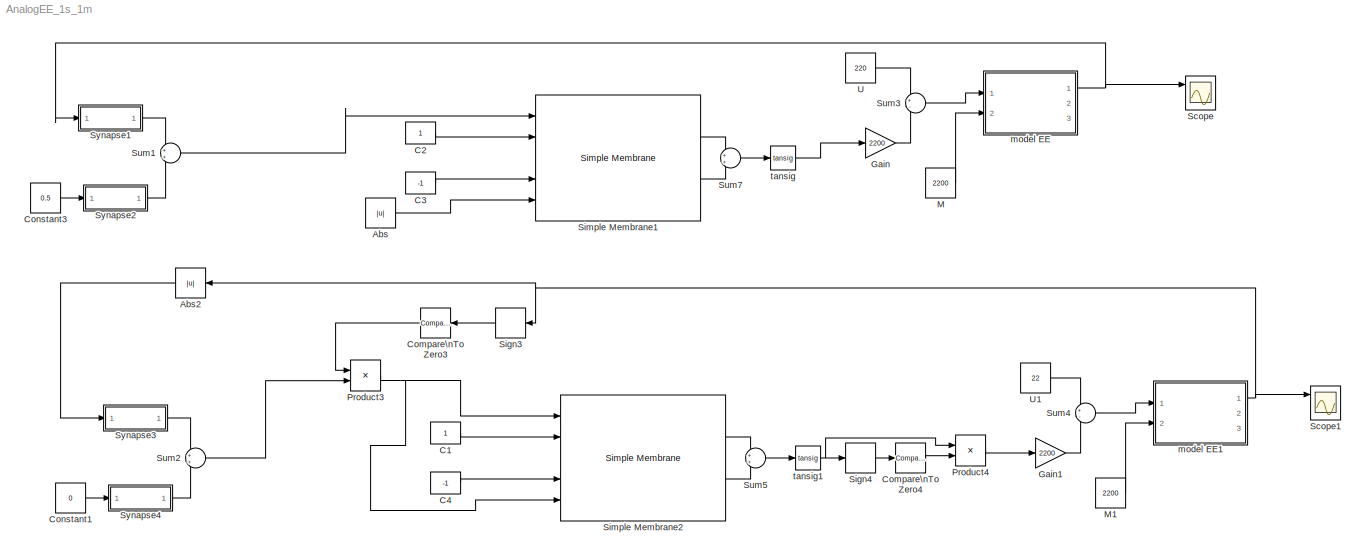
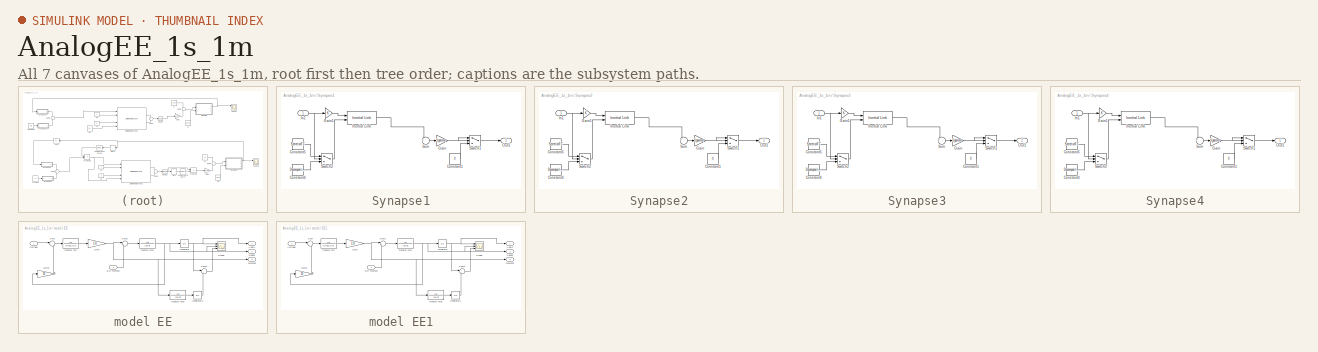
[diagram: thumbnail index - all 7 canvases of the model, root first then tree order]
MODEL AnalogEE_1s_1m
KIND model
BLOCK [Abs] Abs
  OutDataType = sfix(16)
  OutScaling = 2^0
  SID = 1
  SaturateOnIntegerOverflow = off
BLOCK [Abs] Abs2
  OutDataType = sfix(16)
  OutScaling = 2^0
  SID = 2
  SaturateOnIntegerOverflow = off
BLOCK [Constant] C1
  OutDataType = sfix(16)
  OutScaling = 2^0
  SID = 3
BLOCK [Constant] C2
  OutDataType = sfix(16)
  OutScaling = 2^0
  SID = 4
BLOCK [Constant] C3
  OutDataType = sfix(16)
  OutScaling = 2^0
  SID = 5
  Value = -1
BLOCK [Constant] C4
  OutDataType = sfix(16)
  OutScaling = 2^0
  SID = 6
  Value = -1
BLOCK [Reference] Compare\nTo Zero3  REF=simulink/Logic and Bit\nOperations/Compare\nTo Zero
  FunctionWithSeparateData = off
  LogicOutDataTypeMode = uint8
  Ports = [1, 1]
  RTWMemSecDataConstants = Inherit from model
  RTWMemSecDataInternal = Inherit from model
  RTWMemSecDataParameters = Inherit from model
  RTWMemSecFuncExecute = Inherit from model
  RTWMemSecFuncInitTerm = Inherit from model
  SID = 8
  ShowPortLabels = FromPortIcon
  SourceBlock = simulink/Logic and Bit\nOperations/Compare\nTo Zero
  SourceType = Compare To Zero
  SystemSampleTime = -1
  ZeroCross = off
  relop = >=
BLOCK [Reference] Compare\nTo Zero4  REF=simulink/Logic and Bit\nOperations/Compare\nTo Zero
  FunctionWithSeparateData = off
  LogicOutDataTypeMode = uint8
  Ports = [1, 1]
  RTWMemSecDataConstants = Inherit from model
  RTWMemSecDataInternal = Inherit from model
  RTWMemSecDataParameters = Inherit from model
  RTWMemSecFuncExecute = Inherit from model
  RTWMemSecFuncInitTerm = Inherit from model
  SID = 9
  ShowPortLabels = FromPortIcon
  SourceBlock = simulink/Logic and Bit\nOperations/Compare\nTo Zero
  SourceType = Compare To Zero
  SystemSampleTime = -1
  ZeroCross = off
  relop = >=
BLOCK [Constant] Constant1
  OutDataType = sfix(16)
  OutScaling = 2^0
  SID = 10
  Value = 0
BLOCK [Constant] Constant3
  OutDataType = sfix(16)
  OutScaling = 2^0
  SID = 11
  Value = 0.5
BLOCK [Gain] Gain
  Gain = 2200
  OutDataType = sfix(16)
  OutScaling = 2^0
  ParameterDataType = sfix(16)
  ParameterScaling = 2^0
  SID = 12
BLOCK [Gain] Gain1
  Gain = 2200
  OutDataType = sfix(16)
  OutScaling = 2^0
  ParameterDataType = sfix(16)
  ParameterScaling = 2^0
  SID = 13
BLOCK [Constant] M
  OutDataType = sfix(16)
  OutScaling = 2^0
  SID = 14
  Value = 2200
BLOCK [Constant] M1
  OutDataType = sfix(16)
  OutScaling = 2^0
  SID = 15
  Value = 2200
BLOCK [Product] Product3
  InputSameDT = off
  OutDataType = sfix(16)
  OutDataTypeMode = Inherit via internal rule
  OutDataTypeStr = Inherit: Inherit via internal rule
  OutScaling = 2^0
  Ports = [2, 1]
  SID = 17
  SaturateOnIntegerOverflow = off
BLOCK [Product] Product4
  InputSameDT = off
  OutDataType = sfix(16)
  OutDataTypeMode = Inherit via internal rule
  OutDataTypeStr = Inherit: Inherit via internal rule
  OutScaling = 2^0
  Ports = [2, 1]
  SID = 18
  SaturateOnIntegerOverflow = off
BLOCK [Scope] Scope
  DataFormat = StructureWithTime
  Floating = off
  NumInputPorts = 3
  Ports = [3]
  SID = 19
  SampleTime = 0
  SaveName = ScopeData1
  TimeRange = 3
  YMax = 180~1~1
  YMin = 100~-1~-1
BLOCK [Scope] Scope1
  DataFormat = StructureWithTime
  Floating = off
  NumInputPorts = 3
  Ports = [3]
  SID = 20
  SampleTime = 0
  SaveName = ScopeData2
  TimeRange = 3
  YMax = -2~1~1
  YMin = -5~-1~-1
  ZoomMode = xonly
BLOCK [Signum] Sign3
  SID = 22
BLOCK [Signum] Sign4
  SID = 23
BLOCK [Reference] Simple Membrane1  REF=NeuroModelerLibrary/Neuron Elements/Simple Membrane
  ACm = 1e-9
  ARFm = 1e8
  ARm = 1e7
  ECm = 1e-9
  ERFm = 1e8
  ERm = 1e7
  FunctionWithSeparateData = off
  Ports = [5, 2]
  RTWMemSecDataConstants = Inherit from model
  RTWMemSecDataInternal = Inherit from model
  RTWMemSecDataParameters = Inherit from model
  RTWMemSecFuncExecute = Inherit from model
  RTWMemSecFuncInitTerm = Inherit from model
  SID = 24
  ShowPortLabels = FromPortIcon
  SourceBlock = NeuroModelerLibrary/Neuron Elements/Simple Membrane
  SystemSampleTime = -1
BLOCK [Reference] Simple Membrane2  REF=NeuroModelerLibrary/Neuron Elements/Simple Membrane
  ACm = 1e-9
  ARFm = 1e8
  ARm = 1e7
  ECm = 1e-9
  ERFm = 1e8
  ERm = 1e7
  FunctionWithSeparateData = off
  Ports = [5, 2]
  RTWMemSecDataConstants = Inherit from model
  RTWMemSecDataInternal = Inherit from model
  RTWMemSecDataParameters = Inherit from model
  RTWMemSecFuncExecute = Inherit from model
  RTWMemSecFuncInitTerm = Inherit from model
  SID = 25
  ShowPortLabels = FromPortIcon
  SourceBlock = NeuroModelerLibrary/Neuron Elements/Simple Membrane
  SystemSampleTime = -1
BLOCK [Sum] Sum1
  IconShape = round
  OutDataType = sfix(16)
  OutScaling = 2^0
  Ports = [2, 1]
  SID = 26
BLOCK [Sum] Sum2
  IconShape = round
  OutDataType = sfix(16)
  OutScaling = 2^0
  Ports = [2, 1]
  SID = 27
BLOCK [Sum] Sum3
  IconShape = round
  Inputs = +-
  OutDataType = sfix(16)
  OutScaling = 2^0
  Ports = [2, 1]
  SID = 28
BLOCK [Sum] Sum4
  IconShape = round
  Inputs = +-
  OutDataType = sfix(16)
  OutScaling = 2^0
  Ports = [2, 1]
  SID = 29
BLOCK [Sum] Sum5
  IconShape = round
  OutDataType = sfix(16)
  OutScaling = 2^0
  Ports = [2, 1]
  SID = 30
BLOCK [Sum] Sum7
  IconShape = round
  OutDataType = sfix(16)
  OutScaling = 2^0
  Ports = [2, 1]
  SID = 31
BLOCK [SubSystem] Synapse1
  AncestorBlock = NeuroModelerLibrary/Neuron Elements/Synapse
  FunctionWithSeparateData = off
  MaskCallbackString = |||
  MaskEnableString = on,on,on,on
  MaskHideContents = off
  MaskIconFrame = on
  MaskIconOpaque = on
  MaskIconRotate = none
  MaskIconUnits = autoscale
  MaskPortRotate = default
  MaskPromptString = Mediator Secretion|Mediator Decomposition|ksi|gamma
  MaskStyleString = edit,edit,edit,edit
  MaskToolTipString = on,on,on,on
  MaskTunableValueString = on,on,on,on
  MaskValueString = 0.001|0.01|2|1e8
  MaskVariables = SecretionTC=@1;DecompositionTC=@2;ksi=@3;gamma=@4;
  MaskVisibilityString = on,on,on,on
  MinAlgLoopOccurrences = off
  Opaque = off
  Ports = [1, 1]
  PropExecContextOutsideSubsystem = off
  RTWSystemCode = Auto
  RequestExecContextInheritance = off
  SID = 32
BLOCK [Constant] Synapse1/Constant1
  OutDataType = sfix(16)
  OutScaling = 2^0
  SID = 2
  Value = 0
BLOCK [Constant] Synapse1/Constant4
  OutDataType = sfix(16)
  OutScaling = 2^0
  SID = 3
  Value = DecompositionTC
BLOCK [Constant] Synapse1/Constant5
  OutDataType = sfix(16)
  OutScaling = 2^0
  SID = 4
  Value = SecretionTC
BLOCK [Gain] Synapse1/Gain
  Gain = 1/gamma
  OutDataType = sfix(16)
  OutScaling = 2^0
  ParameterDataType = sfix(16)
  ParameterScaling = 2^0
  SID = 5
BLOCK [Gain] Synapse1/Gain1
  OutDataType = sfix(16)
  OutScaling = 2^0
  ParameterDataType = sfix(16)
  ParameterScaling = 2^0
  SID = 6
BLOCK [Inport] Synapse1/In1
  IconDisplay = Port number
  OutDataType = sfix(16)
  OutScaling = 2^0
  SID = 1
BLOCK [Reference] Synapse1/Inertial Link  REF=NeuroModelerLibrary/Support/Inertial Link
  FunctionWithSeparateData = off
  Ports = [2, 1]
  RTWMemSecDataConstants = Inherit from model
  RTWMemSecDataInternal = Inherit from model
  RTWMemSecDataParameters = Inherit from model
  RTWMemSecFuncExecute = Inherit from model
  RTWMemSecFuncInitTerm = Inherit from model
  SID = 7
  ShowPortLabels = FromPortIcon
  SourceBlock = NeuroModelerLibrary/Support/Inertial Link
  SourceType = SubSystem
  SystemSampleTime = -1
BLOCK [Outport] Synapse1/Out1
  IconDisplay = Port number
  OutDataType = sfix(16)
  OutScaling = 2^0
  SID = 11
BLOCK [Sum] Synapse1/Sum
  IconShape = round
  InputSameDT = off
  Inputs = +-
  OutDataType = sfix(16)
  OutDataTypeMode = Inherit via internal rule
  OutDataTypeStr = Inherit: Inherit via internal rule
  OutScaling = 2^0
  Ports = [2, 1]
  SID = 8
BLOCK [Switch] Synapse1/Switch1
  InputSameDT = off
  SID = 9
  SaturateOnIntegerOverflow = off
BLOCK [Switch] Synapse1/Switch2
  InputSameDT = off
  SID = 10
  SaturateOnIntegerOverflow = off
  Threshold = 1
BLOCK [SubSystem] Synapse2
  AncestorBlock = NeuroModelerLibrary/Neuron Elements/Synapse
  FunctionWithSeparateData = off
  MaskCallbackString = |||
  MaskEnableString = on,on,on,on
  MaskHideContents = off
  MaskIconFrame = on
  MaskIconOpaque = on
  MaskIconRotate = none
  MaskIconUnits = autoscale
  MaskPortRotate = default
  MaskPromptString = Mediator Secretion|Mediator Decomposition|ksi|gamma
  MaskStyleString = edit,edit,edit,edit
  MaskToolTipString = on,on,on,on
  MaskTunableValueString = on,on,on,on
  MaskValueString = 0.001|0.01|2|1e8
  MaskVariables = SecretionTC=@1;DecompositionTC=@2;ksi=@3;gamma=@4;
  MaskVisibilityString = on,on,on,on
  MinAlgLoopOccurrences = off
  Opaque = off
  Ports = [1, 1]
  PropExecContextOutsideSubsystem = off
  RTWSystemCode = Auto
  RequestExecContextInheritance = off
  SID = 33
BLOCK [Constant] Synapse2/Constant1
  OutDataType = sfix(16)
  OutScaling = 2^0
  SID = 2
  Value = 0
BLOCK [Constant] Synapse2/Constant4
  OutDataType = sfix(16)
  OutScaling = 2^0
  SID = 3
  Value = DecompositionTC
BLOCK [Constant] Synapse2/Constant5
  OutDataType = sfix(16)
  OutScaling = 2^0
  SID = 4
  Value = SecretionTC
BLOCK [Gain] Synapse2/Gain
  Gain = 1/gamma
  OutDataType = sfix(16)
  OutScaling = 2^0
  ParameterDataType = sfix(16)
  ParameterScaling = 2^0
  SID = 5
BLOCK [Gain] Synapse2/Gain1
  OutDataType = sfix(16)
  OutScaling = 2^0
  ParameterDataType = sfix(16)
  ParameterScaling = 2^0
  SID = 6
BLOCK [Inport] Synapse2/In1
  IconDisplay = Port number
  OutDataType = sfix(16)
  OutScaling = 2^0
  SID = 1
BLOCK [Reference] Synapse2/Inertial Link  REF=NeuroModelerLibrary/Support/Inertial Link
  FunctionWithSeparateData = off
  Ports = [2, 1]
  RTWMemSecDataConstants = Inherit from model
  RTWMemSecDataInternal = Inherit from model
  RTWMemSecDataParameters = Inherit from model
  RTWMemSecFuncExecute = Inherit from model
  RTWMemSecFuncInitTerm = Inherit from model
  SID = 7
  ShowPortLabels = FromPortIcon
  SourceBlock = NeuroModelerLibrary/Support/Inertial Link
  SourceType = SubSystem
  SystemSampleTime = -1
BLOCK [Outport] Synapse2/Out1
  IconDisplay = Port number
  OutDataType = sfix(16)
  OutScaling = 2^0
  SID = 11
BLOCK [Sum] Synapse2/Sum
  IconShape = round
  InputSameDT = off
  Inputs = +-
  OutDataType = sfix(16)
  OutDataTypeMode = Inherit via internal rule
  OutDataTypeStr = Inherit: Inherit via internal rule
  OutScaling = 2^0
  Ports = [2, 1]
  SID = 8
BLOCK [Switch] Synapse2/Switch1
  InputSameDT = off
  SID = 9
  SaturateOnIntegerOverflow = off
BLOCK [Switch] Synapse2/Switch2
  InputSameDT = off
  SID = 10
  SaturateOnIntegerOverflow = off
  Threshold = 1
BLOCK [SubSystem] Synapse3
  AncestorBlock = NeuroModelerLibrary/Neuron Elements/Synapse
  FunctionWithSeparateData = off
  MaskCallbackString = |||
  MaskEnableString = on,on,on,on
  MaskHideContents = off
  MaskIconFrame = on
  MaskIconOpaque = on
  MaskIconRotate = none
  MaskIconUnits = autoscale
  MaskPortRotate = default
  MaskPromptString = Mediator Secretion|Mediator Decomposition|ksi|gamma
  MaskStyleString = edit,edit,edit,edit
  MaskToolTipString = on,on,on,on
  MaskTunableValueString = on,on,on,on
  MaskValueString = 0.001|0.01|2|1e8
  MaskVariables = SecretionTC=@1;DecompositionTC=@2;ksi=@3;gamma=@4;
  MaskVisibilityString = on,on,on,on
  MinAlgLoopOccurrences = off
  Opaque = off
  Ports = [1, 1]
  PropExecContextOutsideSubsystem = off
  RTWSystemCode = Auto
  RequestExecContextInheritance = off
  SID = 34
BLOCK [Constant] Synapse3/Constant1
  OutDataType = sfix(16)
  OutScaling = 2^0
  SID = 2
  Value = 0
BLOCK [Constant] Synapse3/Constant4
  OutDataType = sfix(16)
  OutScaling = 2^0
  SID = 3
  Value = DecompositionTC
BLOCK [Constant] Synapse3/Constant5
  OutDataType = sfix(16)
  OutScaling = 2^0
  SID = 4
  Value = SecretionTC
BLOCK [Gain] Synapse3/Gain
  Gain = 1/gamma
  OutDataType = sfix(16)
  OutScaling = 2^0
  ParameterDataType = sfix(16)
  ParameterScaling = 2^0
  SID = 5
BLOCK [Gain] Synapse3/Gain1
  OutDataType = sfix(16)
  OutScaling = 2^0
  ParameterDataType = sfix(16)
  ParameterScaling = 2^0
  SID = 6
BLOCK [Inport] Synapse3/In1
  IconDisplay = Port number
  OutDataType = sfix(16)
  OutScaling = 2^0
  SID = 1
BLOCK [Reference] Synapse3/Inertial Link  REF=NeuroModelerLibrary/Support/Inertial Link
  FunctionWithSeparateData = off
  Ports = [2, 1]
  RTWMemSecDataConstants = Inherit from model
  RTWMemSecDataInternal = Inherit from model
  RTWMemSecDataParameters = Inherit from model
  RTWMemSecFuncExecute = Inherit from model
  RTWMemSecFuncInitTerm = Inherit from model
  SID = 7
  ShowPortLabels = FromPortIcon
  SourceBlock = NeuroModelerLibrary/Support/Inertial Link
  SourceType = SubSystem
  SystemSampleTime = -1
BLOCK [Outport] Synapse3/Out1
  IconDisplay = Port number
  OutDataType = sfix(16)
  OutScaling = 2^0
  SID = 11
BLOCK [Sum] Synapse3/Sum
  IconShape = round
  InputSameDT = off
  Inputs = +-
  OutDataType = sfix(16)
  OutDataTypeMode = Inherit via internal rule
  OutDataTypeStr = Inherit: Inherit via internal rule
  OutScaling = 2^0
  Ports = [2, 1]
  SID = 8
BLOCK [Switch] Synapse3/Switch1
  InputSameDT = off
  SID = 9
  SaturateOnIntegerOverflow = off
BLOCK [Switch] Synapse3/Switch2
  InputSameDT = off
  SID = 10
  SaturateOnIntegerOverflow = off
  Threshold = 1
BLOCK [SubSystem] Synapse4
  AncestorBlock = NeuroModelerLibrary/Neuron Elements/Synapse
  FunctionWithSeparateData = off
  MaskCallbackString = |||
  MaskEnableString = on,on,on,on
  MaskHideContents = off
  MaskIconFrame = on
  MaskIconOpaque = on
  MaskIconRotate = none
  MaskIconUnits = autoscale
  MaskPortRotate = default
  MaskPromptString = Mediator Secretion|Mediator Decomposition|ksi|gamma
  MaskStyleString = edit,edit,edit,edit
  MaskToolTipString = on,on,on,on
  MaskTunableValueString = on,on,on,on
  MaskValueString = 0.001|0.01|2|1e8
  MaskVariables = SecretionTC=@1;DecompositionTC=@2;ksi=@3;gamma=@4;
  MaskVisibilityString = on,on,on,on
  MinAlgLoopOccurrences = off
  Opaque = off
  Ports = [1, 1]
  PropExecContextOutsideSubsystem = off
  RTWSystemCode = Auto
  RequestExecContextInheritance = off
  SID = 35
BLOCK [Constant] Synapse4/Constant1
  OutDataType = sfix(16)
  OutScaling = 2^0
  SID = 2
  Value = 0
BLOCK [Constant] Synapse4/Constant4
  OutDataType = sfix(16)
  OutScaling = 2^0
  SID = 3
  Value = DecompositionTC
BLOCK [Constant] Synapse4/Constant5
  OutDataType = sfix(16)
  OutScaling = 2^0
  SID = 4
  Value = SecretionTC
BLOCK [Gain] Synapse4/Gain
  Gain = 1/gamma
  OutDataType = sfix(16)
  OutScaling = 2^0
  ParameterDataType = sfix(16)
  ParameterScaling = 2^0
  SID = 5
BLOCK [Gain] Synapse4/Gain1
  OutDataType = sfix(16)
  OutScaling = 2^0
  ParameterDataType = sfix(16)
  ParameterScaling = 2^0
  SID = 6
BLOCK [Inport] Synapse4/In1
  IconDisplay = Port number
  OutDataType = sfix(16)
  OutScaling = 2^0
  SID = 1
BLOCK [Reference] Synapse4/Inertial Link  REF=NeuroModelerLibrary/Support/Inertial Link
  FunctionWithSeparateData = off
  Ports = [2, 1]
  RTWMemSecDataConstants = Inherit from model
  RTWMemSecDataInternal = Inherit from model
  RTWMemSecDataParameters = Inherit from model
  RTWMemSecFuncExecute = Inherit from model
  RTWMemSecFuncInitTerm = Inherit from model
  SID = 7
  ShowPortLabels = FromPortIcon
  SourceBlock = NeuroModelerLibrary/Support/Inertial Link
  SourceType = SubSystem
  SystemSampleTime = -1
BLOCK [Outport] Synapse4/Out1
  IconDisplay = Port number
  OutDataType = sfix(16)
  OutScaling = 2^0
  SID = 11
BLOCK [Sum] Synapse4/Sum
  IconShape = round
  InputSameDT = off
  Inputs = +-
  OutDataType = sfix(16)
  OutDataTypeMode = Inherit via internal rule
  OutDataTypeStr = Inherit: Inherit via internal rule
  OutScaling = 2^0
  Ports = [2, 1]
  SID = 8
BLOCK [Switch] Synapse4/Switch1
  InputSameDT = off
  SID = 9
  SaturateOnIntegerOverflow = off
BLOCK [Switch] Synapse4/Switch2
  InputSameDT = off
  SID = 10
  SaturateOnIntegerOverflow = off
  Threshold = 1
BLOCK [Constant] U
  OutDataType = sfix(16)
  OutScaling = 2^0
  SID = 36
  Value = 220
BLOCK [Constant] U1
  OutDataType = sfix(16)
  OutScaling = 2^0
  SID = 37
  Value = 22
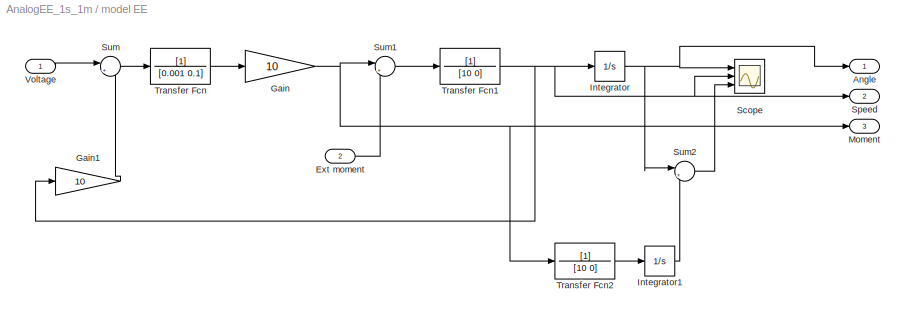
BLOCK [SubSystem] model EE
  FunctionWithSeparateData = off
  MaskHideContents = off
  MinAlgLoopOccurrences = off
  Opaque = off
  Ports = [2, 3]
  PropExecContextOutsideSubsystem = off
  RTWSystemCode = Auto
  RequestExecContextInheritance = off
  SID = 38
BLOCK [Outport] model EE/Angle
  IconDisplay = Port number
  SID = 52
  Tag = Angle
BLOCK [Inport] model EE/Ext moment
  IconDisplay = Port number
  Port = 2
  SID = 40
BLOCK [Gain] model EE/Gain
  Gain = 10
  OutDataTypeMode = Inherit via internal rule
  OutDataTypeStr = Inherit: Inherit via internal rule
  ParamDataTypeStr = Inherit: Inherit via internal rule
  ParameterDataTypeMode = Inherit via internal rule
  SID = 41
  SaturateOnIntegerOverflow = off
BLOCK [Gain] model EE/Gain1
  Gain = 10
  OutDataTypeMode = Inherit via internal rule
  OutDataTypeStr = Inherit: Inherit via internal rule
  ParamDataTypeStr = Inherit: Inherit via internal rule
  ParameterDataTypeMode = Inherit via internal rule
  SID = 42
  SaturateOnIntegerOverflow = off
BLOCK [Integrator] model EE/Integrator
  Ports = [1, 1]
  SID = 43
BLOCK [Integrator] model EE/Integrator1
  Ports = [1, 1]
  SID = 44
BLOCK [Outport] model EE/Moment
  IconDisplay = Port number
  Port = 3
  SID = 54
BLOCK [Scope] model EE/Scope
  DataFormat = StructureWithTime
  Floating = off
  NumInputPorts = 3
  Ports = [3]
  SID = 45
  SampleTime = 0
  YMax = 100000~5e+007~250000
  YMin = -700000~-4.5e+008~-1.5e+006
BLOCK [Outport] model EE/Speed
  IconDisplay = Port number
  Port = 2
  SID = 53
BLOCK [Sum] model EE/Sum
  IconShape = round
  InputSameDT = off
  Inputs = |+-
  OutDataTypeMode = Inherit via internal rule
  OutDataTypeStr = Inherit: Inherit via internal rule
  Ports = [2, 1]
  SID = 46
  SaturateOnIntegerOverflow = off
BLOCK [Sum] model EE/Sum1
  IconShape = round
  InputSameDT = off
  Inputs = |+-
  OutDataTypeMode = Inherit via internal rule
  OutDataTypeStr = Inherit: Inherit via internal rule
  Ports = [2, 1]
  SID = 47
  SaturateOnIntegerOverflow = off
BLOCK [Sum] model EE/Sum2
  IconShape = round
  InputSameDT = off
  Inputs = |++
  OutDataTypeMode = Inherit via internal rule
  OutDataTypeStr = Inherit: Inherit via internal rule
  Ports = [2, 1]
  SID = 48
  SaturateOnIntegerOverflow = off
BLOCK [TransferFcn] model EE/Transfer Fcn
  Denominator = [0.001 0.1]
  SID = 49
BLOCK [TransferFcn] model EE/Transfer Fcn1
  Denominator = [10 0]
  SID = 50
BLOCK [TransferFcn] model EE/Transfer Fcn2
  Denominator = [10 0]
  SID = 51
BLOCK [Inport] model EE/Voltage
  IconDisplay = Port number
  SID = 39
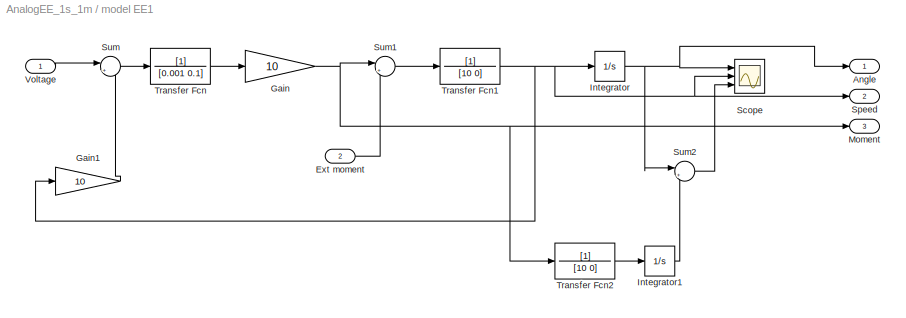
BLOCK [SubSystem] model EE1
  FunctionWithSeparateData = off
  MaskHideContents = off
  MinAlgLoopOccurrences = off
  Opaque = off
  Ports = [2, 3]
  PropExecContextOutsideSubsystem = off
  RTWSystemCode = Auto
  RequestExecContextInheritance = off
  SID = 55
BLOCK [Outport] model EE1/Angle
  IconDisplay = Port number
  SID = 69
  Tag = Angle
BLOCK [Inport] model EE1/Ext moment
  IconDisplay = Port number
  Port = 2
  SID = 57
BLOCK [Gain] model EE1/Gain
  Gain = 10
  OutDataTypeMode = Inherit via internal rule
  OutDataTypeStr = Inherit: Inherit via internal rule
  ParamDataTypeStr = Inherit: Inherit via internal rule
  ParameterDataTypeMode = Inherit via internal rule
  SID = 58
  SaturateOnIntegerOverflow = off
BLOCK [Gain] model EE1/Gain1
  Gain = 10
  OutDataTypeMode = Inherit via internal rule
  OutDataTypeStr = Inherit: Inherit via internal rule
  ParamDataTypeStr = Inherit: Inherit via internal rule
  ParameterDataTypeMode = Inherit via internal rule
  SID = 59
  SaturateOnIntegerOverflow = off
BLOCK [Integrator] model EE1/Integrator
  Ports = [1, 1]
  SID = 60
BLOCK [Integrator] model EE1/Integrator1
  Ports = [1, 1]
  SID = 61
BLOCK [Outport] model EE1/Moment
  IconDisplay = Port number
  Port = 3
  SID = 71
BLOCK [Scope] model EE1/Scope
  DataFormat = StructureWithTime
  Floating = off
  NumInputPorts = 3
  Ports = [3]
  SID = 62
  SampleTime = 0
  YMax = 100000~5e+007~250000
  YMin = -700000~-4.5e+008~-1.5e+006
BLOCK [Outport] model EE1/Speed
  IconDisplay = Port number
  Port = 2
  SID = 70
BLOCK [Sum] model EE1/Sum
  IconShape = round
  InputSameDT = off
  Inputs = |+-
  OutDataTypeMode = Inherit via internal rule
  OutDataTypeStr = Inherit: Inherit via internal rule
  Ports = [2, 1]
  SID = 63
  SaturateOnIntegerOverflow = off
BLOCK [Sum] model EE1/Sum1
  IconShape = round
  InputSameDT = off
  Inputs = |+-
  OutDataTypeMode = Inherit via internal rule
  OutDataTypeStr = Inherit: Inherit via internal rule
  Ports = [2, 1]
  SID = 64
  SaturateOnIntegerOverflow = off
BLOCK [Sum] model EE1/Sum2
  IconShape = round
  InputSameDT = off
  Inputs = |++
  OutDataTypeMode = Inherit via internal rule
  OutDataTypeStr = Inherit: Inherit via internal rule
  Ports = [2, 1]
  SID = 65
  SaturateOnIntegerOverflow = off
BLOCK [TransferFcn] model EE1/Transfer Fcn
  Denominator = [0.001 0.1]
  SID = 66
BLOCK [TransferFcn] model EE1/Transfer Fcn1
  Denominator = [10 0]
  SID = 67
BLOCK [TransferFcn] model EE1/Transfer Fcn2
  Denominator = [10 0]
  SID = 68
BLOCK [Inport] model EE1/Voltage
  IconDisplay = Port number
  SID = 56
BLOCK [Reference] tansig  REF=neural/Transfer Functions/tansig
  FunctionWithSeparateData = off
  Ports = [1, 1]
  RTWMemSecDataConstants = Inherit from model
  RTWMemSecDataInternal = Inherit from model
  RTWMemSecDataParameters = Inherit from model
  RTWMemSecFuncExecute = Inherit from model
  RTWMemSecFuncInitTerm = Inherit from model
  SID = 72
  ShowPortLabels = FromPortIcon
  SourceBlock = neural/Transfer Functions/tansig
  SystemSampleTime = -1
BLOCK [Reference] tansig1  REF=neural/Transfer Functions/tansig
  FunctionWithSeparateData = off
  Ports = [1, 1]
  RTWMemSecDataConstants = Inherit from model
  RTWMemSecDataInternal = Inherit from model
  RTWMemSecDataParameters = Inherit from model
  RTWMemSecFuncExecute = Inherit from model
  RTWMemSecFuncInitTerm = Inherit from model
  SID = 73
  ShowPortLabels = FromPortIcon
  SourceBlock = neural/Transfer Functions/tansig
  SystemSampleTime = -1
LINE Abs2:1 -> Synapse3:1
LINE Abs:1 -> Simple Membrane1:5
LINE C1:1 -> Simple Membrane2:2
LINE C2:1 -> Simple Membrane1:2
LINE C3:1 -> Simple Membrane1:4
LINE C4:1 -> Simple Membrane2:4
LINE Compare\nTo Zero3:1 -> Product3:1
LINE Compare\nTo Zero4:1 -> Product4:2
LINE Constant1:1 -> Synapse4:1
LINE Constant3:1 -> Synapse2:1
LINE Gain1:1 -> Sum4:2
LINE Gain:1 -> Sum3:2
LINE M1:1 -> model EE1:2
LINE M:1 -> model EE:2
NET Product3:1 -> Simple Membrane2:1, Simple Membrane2:5
LINE Product4:1 -> Gain1:1
LINE Sign3:1 -> Compare\nTo Zero3:1
LINE Sign4:1 -> Compare\nTo Zero4:1
LINE Simple Membrane1:1 -> Sum7:1
LINE Simple Membrane1:2 -> Sum7:2
LINE Simple Membrane2:1 -> Sum5:1
LINE Simple Membrane2:2 -> Sum5:2
LINE Sum1:1 -> Simple Membrane1:1
LINE Sum2:1 -> Product3:2
LINE Sum3:1 -> model EE:1
LINE Sum4:1 -> model EE1:1
LINE Sum5:1 -> tansig1:1
LINE Sum7:1 -> tansig:1
LINE Synapse1/Constant1:1 -> Synapse1/Switch1:3
LINE Synapse1/Constant4:1 -> Synapse1/Switch2:3
LINE Synapse1/Constant5:1 -> Synapse1/Switch2:1
LINE Synapse1/Gain1:1 -> Synapse1/Inertial Link:1
NET Synapse1/Gain:1 -> Synapse1/Switch1:1, Synapse1/Switch1:2
NET Synapse1/In1:1 -> Synapse1/Gain1:1, Synapse1/Switch2:2
LINE Synapse1/Inertial Link:1 -> Synapse1/Sum:1
LINE Synapse1/Sum:1 -> Synapse1/Gain:1
LINE Synapse1/Switch1:1 -> Synapse1/Out1:1
LINE Synapse1/Switch2:1 -> Synapse1/Inertial Link:2
LINE Synapse1:1 -> Sum1:1
LINE Synapse2/Constant1:1 -> Synapse2/Switch1:3
LINE Synapse2/Constant4:1 -> Synapse2/Switch2:3
LINE Synapse2/Constant5:1 -> Synapse2/Switch2:1
LINE Synapse2/Gain1:1 -> Synapse2/Inertial Link:1
NET Synapse2/Gain:1 -> Synapse2/Switch1:1, Synapse2/Switch1:2
NET Synapse2/In1:1 -> Synapse2/Gain1:1, Synapse2/Switch2:2
LINE Synapse2/Inertial Link:1 -> Synapse2/Sum:1
LINE Synapse2/Sum:1 -> Synapse2/Gain:1
LINE Synapse2/Switch1:1 -> Synapse2/Out1:1
LINE Synapse2/Switch2:1 -> Synapse2/Inertial Link:2
LINE Synapse2:1 -> Sum1:2
LINE Synapse3/Constant1:1 -> Synapse3/Switch1:3
LINE Synapse3/Constant4:1 -> Synapse3/Switch2:3
LINE Synapse3/Constant5:1 -> Synapse3/Switch2:1
LINE Synapse3/Gain1:1 -> Synapse3/Inertial Link:1
NET Synapse3/Gain:1 -> Synapse3/Switch1:1, Synapse3/Switch1:2
NET Synapse3/In1:1 -> Synapse3/Gain1:1, Synapse3/Switch2:2
LINE Synapse3/Inertial Link:1 -> Synapse3/Sum:1
LINE Synapse3/Sum:1 -> Synapse3/Gain:1
LINE Synapse3/Switch1:1 -> Synapse3/Out1:1
LINE Synapse3/Switch2:1 -> Synapse3/Inertial Link:2
LINE Synapse3:1 -> Sum2:1
LINE Synapse4/Constant1:1 -> Synapse4/Switch1:3
LINE Synapse4/Constant4:1 -> Synapse4/Switch2:3
LINE Synapse4/Constant5:1 -> Synapse4/Switch2:1
LINE Synapse4/Gain1:1 -> Synapse4/Inertial Link:1
NET Synapse4/Gain:1 -> Synapse4/Switch1:1, Synapse4/Switch1:2
NET Synapse4/In1:1 -> Synapse4/Gain1:1, Synapse4/Switch2:2
LINE Synapse4/Inertial Link:1 -> Synapse4/Sum:1
LINE Synapse4/Sum:1 -> Synapse4/Gain:1
LINE Synapse4/Switch1:1 -> Synapse4/Out1:1
LINE Synapse4/Switch2:1 -> Synapse4/Inertial Link:2
LINE Synapse4:1 -> Sum2:2
LINE U1:1 -> Sum4:1
LINE U:1 -> Sum3:1
LINE model EE/Ext moment:1 -> model EE/Sum1:2
LINE model EE/Gain1:1 -> model EE/Sum:2
NET model EE/Gain:1 -> model EE/Moment:1, model EE/Sum1:1, model EE/Transfer Fcn2:1
LINE model EE/Integrator1:1 -> model EE/Sum2:2
NET model EE/Integrator:1 -> model EE/Angle:1, model EE/Scope:1, model EE/Sum2:1
LINE model EE/Sum1:1 -> model EE/Transfer Fcn1:1
LINE model EE/Sum2:1 -> model EE/Scope:3
LINE model EE/Sum:1 -> model EE/Transfer Fcn:1
NET model EE/Transfer Fcn1:1 -> model EE/Gain1:1, model EE/Integrator:1, model EE/Scope:2, model EE/Speed:1
LINE model EE/Transfer Fcn2:1 -> model EE/Integrator1:1
LINE model EE/Transfer Fcn:1 -> model EE/Gain:1
LINE model EE/Voltage:1 -> model EE/Sum:1
LINE model EE1/Ext moment:1 -> model EE1/Sum1:2
LINE model EE1/Gain1:1 -> model EE1/Sum:2
NET model EE1/Gain:1 -> model EE1/Moment:1, model EE1/Sum1:1, model EE1/Transfer Fcn2:1
LINE model EE1/Integrator1:1 -> model EE1/Sum2:2
NET model EE1/Integrator:1 -> model EE1/Angle:1, model EE1/Scope:1, model EE1/Sum2:1
LINE model EE1/Sum1:1 -> model EE1/Transfer Fcn1:1
LINE model EE1/Sum2:1 -> model EE1/Scope:3
LINE model EE1/Sum:1 -> model EE1/Transfer Fcn:1
NET model EE1/Transfer Fcn1:1 -> model EE1/Gain1:1, model EE1/Integrator:1, model EE1/Scope:2, model EE1/Speed:1
LINE model EE1/Transfer Fcn2:1 -> model EE1/Integrator1:1
LINE model EE1/Transfer Fcn:1 -> model EE1/Gain:1
LINE model EE1/Voltage:1 -> model EE1/Sum:1
NET model EE1:1 -> Abs2:1, Scope1:1, Sign3:1
NET model EE:1 -> Scope:1, Synapse1:1
NET tansig1:1 -> Product4:1, Sign4:1
LINE tansig:1 -> Gain:1
note: NET lines group one-source signal fan-out (src -> all destinations, sorted); 1:1 wires keep LINE
